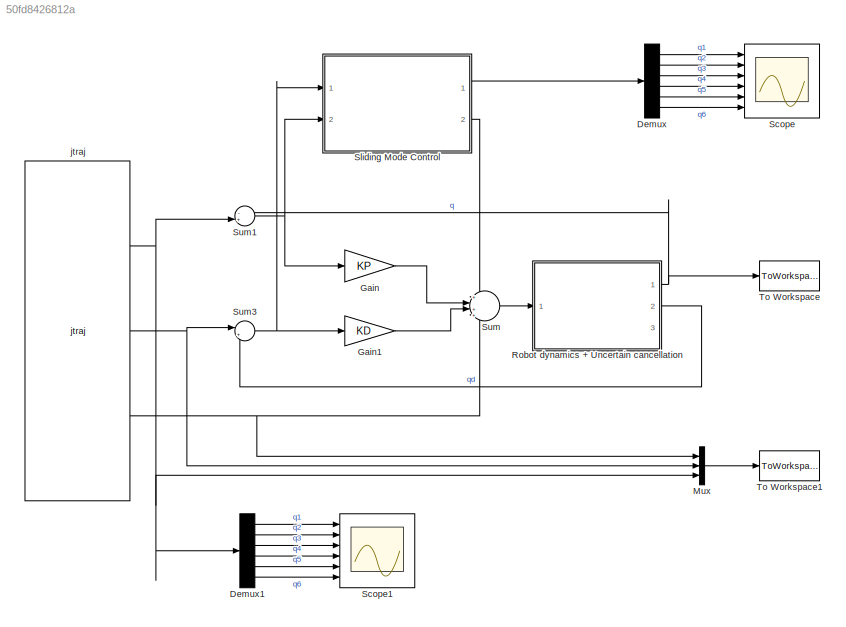
MODEL slx_50fd8426812a
KIND model
CONFIG AbsTol = auto
CONFIG EnableMultiTasking = off
CONFIG FixedStep = timeStep
CONFIG InitFcn = initSim=true;\ninitSMctrl
CONFIG MaxStep = auto
CONFIG MinStep = auto
CONFIG RelTol = 1e-3
CONFIG SampleTimeConstraint = Unconstrained
CONFIG Solver = FixedStepAuto
CONFIG SolverName = FixedStepAuto
CONFIG StartTime = 0.0
CONFIG StopFcn = initSim=false;\ninitSMctrl
CONFIG StopTime = tfin
BLOCK [Demux] Demux
  DisplayOption = bar
  Outputs = 6
  Ports = [1, 6]
BLOCK [Demux] Demux1
  DisplayOption = bar
  Outputs = 6
  Ports = [1, 6]
BLOCK [Gain] Gain
  Gain = KP
  Multiplication = Matrix(K*u)
  OutDataTypeStr = Inherit: Inherit via internal rule
  ParamDataTypeStr = Inherit: Inherit via internal rule
  SaturateOnIntegerOverflow = off
BLOCK [Gain] Gain1
  Gain = KD
  Multiplication = Matrix(K*u)
  OutDataTypeStr = Inherit: Inherit via internal rule
  ParamDataTypeStr = Inherit: Inherit via internal rule
  SaturateOnIntegerOverflow = off
BLOCK [Mux] Mux
  DisplayOption = bar
  Inputs = 3
  Ports = [3, 1]
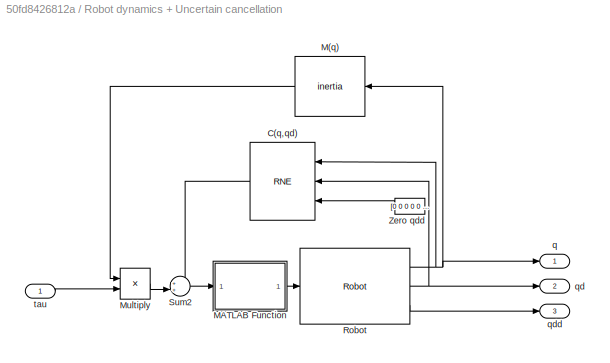
BLOCK [SubSystem] Robot dynamics + Uncertain cancellation
  Ports = [1, 3]
  RequestExecContextInheritance = off
BLOCK [Reference] Robot dynamics + Uncertain cancellation/C(q,qd)  REF=roblocks/Arm/RNE  (lib defined in mdl_2a292b13c81b, mdl_69400f8cfe22, +12 more)
  Ports = [3, 1]
  SourceBlock = roblocks/Arm/RNE
BLOCK [Reference] Robot dynamics + Uncertain cancellation/M(q)  REF=roblocks/Arm/inertia  (lib defined in mdl_2a292b13c81b, mdl_69400f8cfe22, +12 more)
  Ports = [1, 1]
  SourceBlock = roblocks/Arm/inertia
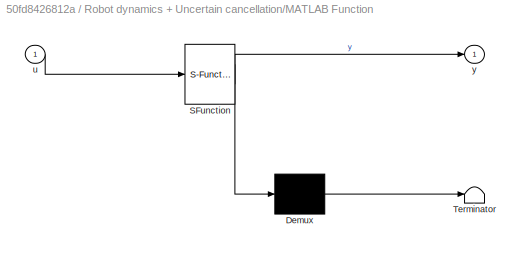
BLOCK [SubSystem] Robot dynamics + Uncertain cancellation/MATLAB Function
  ErrorFcn = Stateflow.Translate.translate
  PermitHierarchicalResolution = ExplicitOnly
  Ports = [1, 1]
  RequestExecContextInheritance = off
  SFBlockType = MATLAB Function
  TreatAsAtomicUnit = on
BLOCK [Demux] Robot dynamics + Uncertain cancellation/MATLAB Function/ Demux 
  Outputs = 1
  Ports = [1, 1]
BLOCK [S-Function] Robot dynamics + Uncertain cancellation/MATLAB Function/ SFunction 
  EnableBusSupport = on
  FunctionName = sf_sfun
  PortCounts = [1 2]
  Ports = [1, 2]
  SFcnIsStateOwnerBlock = off
  SFunctionDeploymentMode = off
  Tag = Stateflow S-Function SMctrl 1
BLOCK [Terminator] Robot dynamics + Uncertain cancellation/MATLAB Function/ Terminator 
BLOCK [Inport] Robot dynamics + Uncertain cancellation/MATLAB Function/u
  IconDisplay = Port number
BLOCK [Outport] Robot dynamics + Uncertain cancellation/MATLAB Function/y
  IconDisplay = Port number
BLOCK [Product] Robot dynamics + Uncertain cancellation/Multiply
  InputSameDT = off
  Multiplication = Matrix(*)
  OutDataTypeStr = Inherit: Inherit via internal rule
  Ports = [2, 1]
  RndMeth = Floor
  SaturateOnIntegerOverflow = off
BLOCK [Reference] Robot dynamics + Uncertain cancellation/Robot  REF=roblocks/Arm/Robot  (lib defined in mdl_2a292b13c81b, mdl_69400f8cfe22, +12 more)
  Ports = [1, 3]
  SourceBlock = roblocks/Arm/Robot
BLOCK [Sum] Robot dynamics + Uncertain cancellation/Sum2
  IconShape = round
  InputSameDT = off
  Inputs = ++|
  OutDataTypeStr = Inherit: Inherit via internal rule
  Ports = [2, 1]
  SaturateOnIntegerOverflow = off
BLOCK [Constant] Robot dynamics + Uncertain cancellation/Zero qdd
  Value = [0 0 0 0 0 0]'
BLOCK [Outport] Robot dynamics + Uncertain cancellation/q
  IconDisplay = Port number
BLOCK [Outport] Robot dynamics + Uncertain cancellation/qd
  IconDisplay = Port number
  Port = 2
BLOCK [Outport] Robot dynamics + Uncertain cancellation/qdd
  IconDisplay = Port number
  Port = 3
BLOCK [Inport] Robot dynamics + Uncertain cancellation/tau
  IconDisplay = Port number
BLOCK [Scope] Scope
  Floating = off
  NumInputPorts = 6
  Ports = [6]
  ScopeSpecificationString = Simulink.scopes.TimeScopeBlockCfg('CurrentConfiguration', extmgr.ConfigurationSet(extmgr.Configuration('Core','General UI',true),extmgr.Configuration('Core','Source UI',true),extmgr.Configuration('Sources','WiredSimulink',true),extmgr.Configuration('Visuals','Time Domain',true,'SerializedDisplays',{struct('MinYLimReal','-0.01547','MaxYLimReal','0.02855','YLabelReal','','MinYLimMag','0.00000','MaxY...<+1555ch>
BLOCK [Scope] Scope1
  Floating = off
  NumInputPorts = 6
  Ports = [6]
  ScopeSpecificationString = Simulink.scopes.TimeScopeBlockCfg('CurrentConfiguration', extmgr.ConfigurationSet(extmgr.Configuration('Core','General UI',true),extmgr.Configuration('Core','Source UI',true),extmgr.Configuration('Sources','WiredSimulink',true,'DataLoggingVariableName','ScopeData1'),extmgr.Configuration('Visuals','Time Domain',true,'SerializedDisplays',{struct('MinYLimReal','-3.72267','MaxYLimReal','2.08807','YLab...<+1629ch>
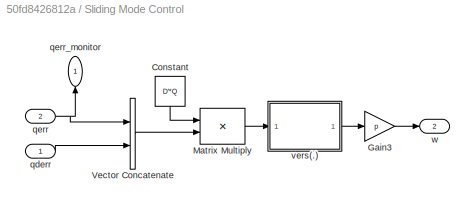
BLOCK [SubSystem] Sliding Mode Control
  Ports = [2, 2]
  RequestExecContextInheritance = off
BLOCK [Constant] Sliding Mode Control/Constant
  Value = D'*Q
BLOCK [Gain] Sliding Mode Control/Gain3
  Gain = p
  OutDataTypeStr = Inherit: Inherit via internal rule
  ParamDataTypeStr = Inherit: Inherit via internal rule
  SaturateOnIntegerOverflow = off
BLOCK [Product] Sliding Mode Control/Matrix Multiply
  InputSameDT = off
  Multiplication = Matrix(*)
  OutDataTypeStr = Inherit: Inherit via internal rule
  Ports = [2, 1]
  RndMeth = Floor
  SaturateOnIntegerOverflow = off
BLOCK [Concatenate] Sliding Mode Control/Vector Concatenate
  Mode = Multidimensional array
  Ports = [2, 1]
BLOCK [Inport] Sliding Mode Control/qderr
  IconDisplay = Port number
BLOCK [Inport] Sliding Mode Control/qerr
  IconDisplay = Port number
  Port = 2
BLOCK [Outport] Sliding Mode Control/qerr_monitor
  IconDisplay = Port number
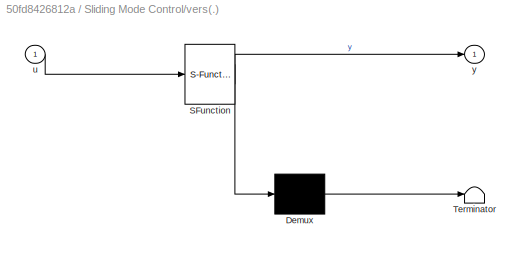
BLOCK [SubSystem] Sliding Mode Control/vers(.)
  ErrorFcn = Stateflow.Translate.translate
  PermitHierarchicalResolution = ExplicitOnly
  Ports = [1, 1]
  RequestExecContextInheritance = off
  SFBlockType = MATLAB Function
  TreatAsAtomicUnit = on
BLOCK [Demux] Sliding Mode Control/vers(.)/ Demux 
  Outputs = 1
  Ports = [1, 1]
BLOCK [S-Function] Sliding Mode Control/vers(.)/ SFunction 
  EnableBusSupport = on
  FunctionName = sf_sfun
  PortCounts = [1 2]
  Ports = [1, 2]
  SFcnIsStateOwnerBlock = off
  SFunctionDeploymentMode = off
  Tag = Stateflow S-Function SMctrl 2
BLOCK [Terminator] Sliding Mode Control/vers(.)/ Terminator 
BLOCK [Inport] Sliding Mode Control/vers(.)/u
  IconDisplay = Port number
BLOCK [Outport] Sliding Mode Control/vers(.)/y
  IconDisplay = Port number
BLOCK [Outport] Sliding Mode Control/w
  IconDisplay = Port number
  Port = 2
BLOCK [Sum] Sum
  IconShape = round
  InputSameDT = off
  Inputs = +|++|+
  OutDataTypeStr = Inherit: Inherit via internal rule
  Ports = [4, 1]
  SaturateOnIntegerOverflow = off
BLOCK [Sum] Sum1
  IconShape = round
  InputSameDT = off
  Inputs = -+|
  OutDataTypeStr = Inherit: Inherit via internal rule
  Ports = [2, 1]
  SaturateOnIntegerOverflow = off
BLOCK [Sum] Sum3
  IconShape = round
  InputSameDT = off
  Inputs = |+-
  OutDataTypeStr = Inherit: Inherit via internal rule
  Ports = [2, 1]
  SaturateOnIntegerOverflow = off
BLOCK [ToWorkspace] To Workspace
  FixptAsFi = on
  MaxDataPoints = inf
  Ports = [1]
  SampleTime = -1
  Save2DSignal = 3-D array (concatenate along third dimension)
  SaveFormat = Timeseries
  VariableName = qResult
BLOCK [ToWorkspace] To Workspace1
  FixptAsFi = on
  MaxDataPoints = inf
  Ports = [1]
  SampleTime = -1
  Save2DSignal = 3-D array (concatenate along third dimension)
  SaveFormat = Timeseries
  VariableName = trajectory
BLOCK [Reference] jtraj  REF=roblocks/Toolbox/jtraj  (lib defined in mdl_2a292b13c81b, mdl_69400f8cfe22, +12 more)
  Ports = [0, 3]
  SourceBlock = roblocks/Toolbox/jtraj
LINE Demux1:1 -> Scope1:1
LINE Demux1:2 -> Scope1:2
LINE Demux1:3 -> Scope1:3
LINE Demux1:4 -> Scope1:4
LINE Demux1:5 -> Scope1:5
LINE Demux1:6 -> Scope1:6
LINE Demux:1 -> Scope:1
LINE Demux:2 -> Scope:2
LINE Demux:3 -> Scope:3
LINE Demux:4 -> Scope:4
LINE Demux:5 -> Scope:5
LINE Demux:6 -> Scope:6
LINE Gain1:1 -> Sum:3
LINE Gain:1 -> Sum:2
LINE Mux:1 -> To Workspace1:1
LINE Robot dynamics + Uncertain cancellation/C(q,qd):1 -> Robot dynamics + Uncertain cancellation/Sum2:1
LINE Robot dynamics + Uncertain cancellation/M(q):1 -> Robot dynamics + Uncertain cancellation/Multiply:1
LINE Robot dynamics + Uncertain cancellation/MATLAB Function:1 -> Robot dynamics + Uncertain cancellation/Robot:1
LINE Robot dynamics + Uncertain cancellation/Multiply:1 -> Robot dynamics + Uncertain cancellation/Sum2:2
NET Robot dynamics + Uncertain cancellation/Robot:1 -> Robot dynamics + Uncertain cancellation/C(q,qd):1, Robot dynamics + Uncertain cancellation/M(q):1, Robot dynamics + Uncertain cancellation/q:1
NET Robot dynamics + Uncertain cancellation/Robot:2 -> Robot dynamics + Uncertain cancellation/C(q,qd):2, Robot dynamics + Uncertain cancellation/qd:1
LINE Robot dynamics + Uncertain cancellation/Robot:3 -> Robot dynamics + Uncertain cancellation/qdd:1
LINE Robot dynamics + Uncertain cancellation/Sum2:1 -> Robot dynamics + Uncertain cancellation/MATLAB Function:1
LINE Robot dynamics + Uncertain cancellation/Zero qdd:1 -> Robot dynamics + Uncertain cancellation/C(q,qd):3
LINE Robot dynamics + Uncertain cancellation/tau:1 -> Robot dynamics + Uncertain cancellation/Multiply:2
NET Robot dynamics + Uncertain cancellation:1 -> Sum1:1, To Workspace:1
LINE Robot dynamics + Uncertain cancellation:2 -> Sum3:2
LINE Sliding Mode Control/Constant:1 -> Sliding Mode Control/Matrix Multiply:1
LINE Sliding Mode Control/Gain3:1 -> Sliding Mode Control/w:1
LINE Sliding Mode Control/Matrix Multiply:1 -> Sliding Mode Control/vers(.):1
LINE Sliding Mode Control/Vector Concatenate:1 -> Sliding Mode Control/Matrix Multiply:2
LINE Sliding Mode Control/qderr:1 -> Sliding Mode Control/Vector Concatenate:2
NET Sliding Mode Control/qerr:1 -> Sliding Mode Control/Vector Concatenate:1, Sliding Mode Control/qerr_monitor:1
LINE Sliding Mode Control/vers(.):1 -> Sliding Mode Control/Gain3:1
LINE Sliding Mode Control:1 -> Demux:1
LINE Sliding Mode Control:2 -> Sum:1
NET Sum1:1 -> Gain:1, Sliding Mode Control:2
NET Sum3:1 -> Gain1:1, Sliding Mode Control:1
LINE Sum:1 -> Robot dynamics + Uncertain cancellation:1
NET jtraj:1 -> Demux1:1, Mux:3, Sum1:2
NET jtraj:2 -> Mux:2, Sum3:1
NET jtraj:3 -> Mux:1, Sum:4
note: NET lines group one-source signal fan-out (src -> all destinations, sorted); 1:1 wires keep LINE
CHART Robot dynamics
+ Uncertain cancellation/MATLAB Function states=1 transitions=1
  STATE_LABEL 'eML_blk_kernel()'
  STATE_LABEL 'SCRIPT:\nfunction y = checkNaN(u)\nif(isnan(u))\n    y=zeros(size(u));\nelse\n    y=u;\nend\n\n'
CHART Sliding Mode Control/vers(.) states=1 transitions=1
  STATE_LABEL 'eML_blk_kernel()'
  STATE_LABEL 'SCRIPT:\nfunction y = vers(u)\n\ny = vers(u);\n'
